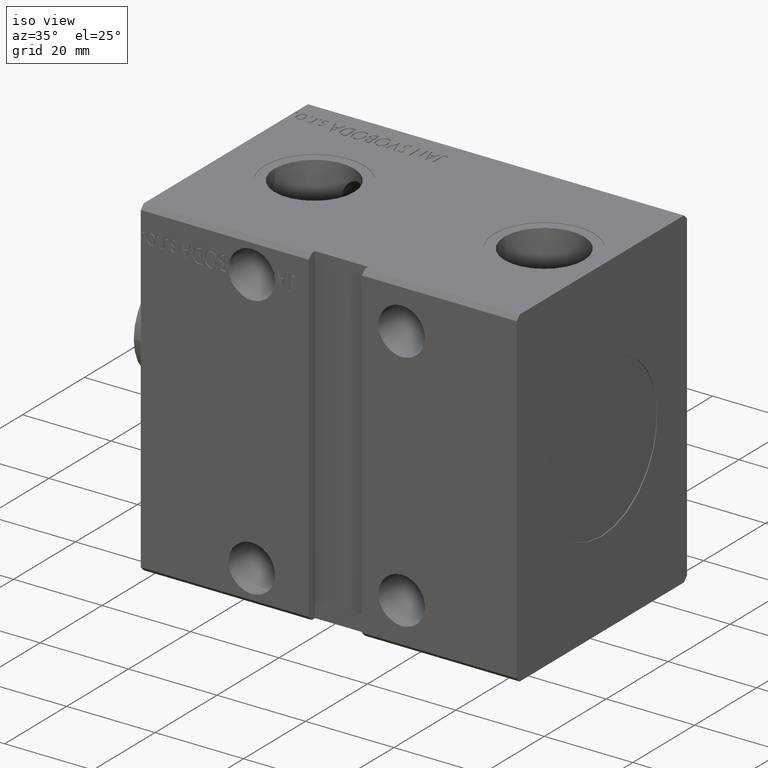
[diagram: clean part render]
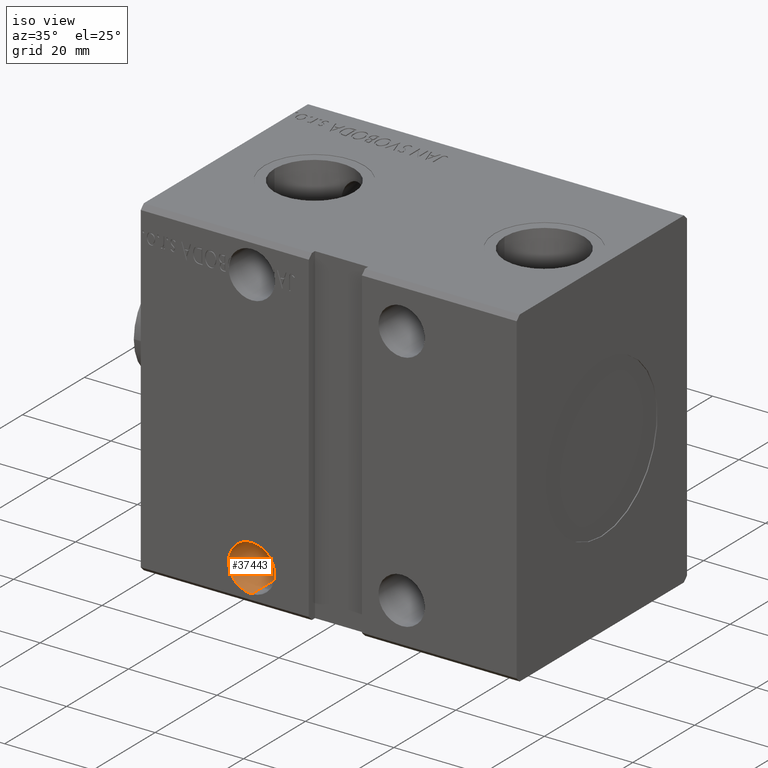
[diagram: same view with one face highlighted and labeled with its STEP entity id]
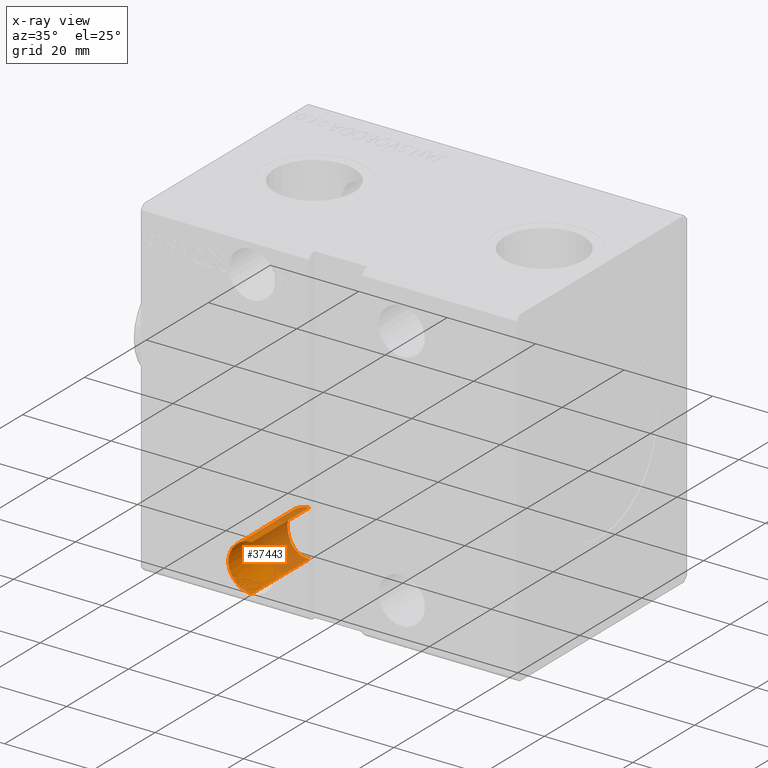
[diagram: x-ray of the same camera — body ghosted, the highlighted face saturated]
A machine part, iso view. The second image highlights one B-rep face of the part: STEP entity #37443.
The next image is the same camera in x-ray: the body ghosted, the highlighted face saturated — about 41% of this face is hidden behind the body in this view.
In plain terms, the highlighted cylindrical surface (edge-blend (fillet) strip) has radius 5.25 mm, axis along (-0, -1, -0).
Its self-contained STEP definition (entity closure, byte-faithful):
#437 = LINE ( 'NONE', #9055, #20990 ) ;
#1131 = VERTEX_POINT ( 'NONE', #37948 ) ;
#1717 = CARTESIAN_POINT ( 'NONE',  ( 21.13581351182155288, -8.808286796013796049, -26.53170078741924343 ) ) ;
#1936 = CARTESIAN_POINT ( 'NONE',  ( 20.01158755616825857, -8.489675680713254735, -31.36801936094759569 ) ) ;
#2175 = ORIENTED_EDGE ( 'NONE', *, *, #22770, .T. ) ;
#2333 = CARTESIAN_POINT ( 'NONE',  ( 19.91032013521866517, -8.453117132441940740, -29.13839739757945324 ) ) ;
#2540 = CARTESIAN_POINT ( 'NONE',  ( 22.31964126081586741, -8.975395274133536105, -25.53840020970784863 ) ) ;
#2643 = VERTEX_POINT ( 'NONE', #12872 ) ;
#4734 = VERTEX_POINT ( 'NONE', #31499 ) ;
#5205 = CARTESIAN_POINT ( 'NONE',  ( 24.24614678946787194, -8.914927550530356015, -24.81574746635270401 ) ) ;
#5815 = CARTESIAN_POINT ( 'NONE',  ( 22.46749615007263756, -8.985536476660895389, -25.44979868604956863 ) ) ;
#5866 = EDGE_LOOP ( 'NONE', ( #23806, #2175, #18679, #8338 ) ) ;
#7226 = VERTEX_POINT ( 'NONE', #25282 ) ;
#8261 = CARTESIAN_POINT ( 'NONE',  ( 19.85032660596811738, -8.430888601869972021, -30.34179020683364314 ) ) ;
#8338 = ORIENTED_EDGE ( 'NONE', *, *, #24582, .F. ) ;
#8386 = AXIS2_PLACEMENT_3D ( 'NONE', #34622, #19289, #28299 ) ;
#8474 = CARTESIAN_POINT ( 'NONE',  ( 19.90982819484606381, -8.452936693195294282, -30.85860526111925495 ) ) ;
#8677 = CARTESIAN_POINT ( 'NONE',  ( 20.11270367705738948, -8.525401507591297445, -28.30134447258186370 ) ) ;
#8883 = CARTESIAN_POINT ( 'NONE',  ( 20.01248818278899932, -8.489995101794782784, -28.62855630639378290 ) ) ;
#9055 = CARTESIAN_POINT ( 'NONE',  ( 25.09203633362806229, 62.50000000000002842, -35.24999999999999289 ) ) ;
#11135 = CARTESIAN_POINT ( 'NONE',  ( 25.09203633362806229, -8.753478393117793743, -24.74999999999998934 ) ) ;
#11744 = CARTESIAN_POINT ( 'NONE',  ( 22.76738609301051497, -8.998283481120575189, -34.71044669971033869 ) ) ;
#11946 = CARTESIAN_POINT ( 'NONE',  ( 20.37479934545333649, -8.609719649645143136, -27.67043791604183411 ) ) ;
#12872 = CARTESIAN_POINT ( 'NONE',  ( 25.09203633362806585, -8.753478393117795520, -35.25000000000000000 ) ) ;
#14055 = DIRECTION ( 'NONE',  ( -0.000000000000000000, -1.000000000000000000, -5.507058653894626469E-17 ) ) ;
#14204 = CARTESIAN_POINT ( 'NONE',  ( 24.92548303146842770, -8.793283776070204283, -24.75000000000000000 ) ) ;
#14414 = CARTESIAN_POINT ( 'NONE',  ( 21.88878565576105473, -8.935709917871195174, -34.17360088282929809 ) ) ;
#14812 = CARTESIAN_POINT ( 'NONE',  ( 22.46293648994419812, -8.985253342143384003, -34.54754228830879725 ) ) ;
#14877 = AXIS2_PLACEMENT_3D ( 'NONE', #20760, #38571, #36092 ) ;
#15000 = VECTOR ( 'NONE', #14055, 1000.000000000000000 ) ;
#15026 = CARTESIAN_POINT ( 'NONE',  ( 21.62935564280670064, -8.896033270444579699, -26.05006266297171535 ) ) ;
#17122 = LINE ( 'NONE', #26723, #15000 ) ;
#17677 = CARTESIAN_POINT ( 'NONE',  ( 20.11164270990531122, -8.525048521224713127, -31.69579571519651040 ) ) ;
#17885 = CARTESIAN_POINT ( 'NONE',  ( 22.92576634363160792, -9.001124273122334429, -34.78538622542409797 ) ) ;
#18679 = ORIENTED_EDGE ( 'NONE', *, *, #20040, .T. ) ;
#19289 = DIRECTION ( 'NONE',  ( 0.000000000000000000, -1.000000000000000000, -5.507058653894625853E-17 ) ) ;
#20040 = EDGE_CURVE ( 'NONE', #7226, #1131, #26004, .T. ) ;
#20518 = CARTESIAN_POINT ( 'NONE',  ( 22.03373301574867682, -8.949130486034311716, -25.72930591772997744 ) ) ;
#20726 = CARTESIAN_POINT ( 'NONE',  ( 20.91827991304104373, -8.758132434806764621, -33.20291473209898214 ) ) ;
#20760 = CARTESIAN_POINT ( 'NONE',  ( 25.09203633362806229, 62.50000000000002842, -29.99999999999998934 ) ) ;
#20765 = B_SPLINE_CURVE_WITH_KNOTS ( 'NONE', 3,
 ( #11135, #14204, #33409, #27280, #5205, #30348, #30548, #21340, #36882, #5815, #2540, #20518, #33202, #15026, #27488, #1717, #39950, #23793, #11946, #8677, #8883, #2333, #26877, #36680, #36475, #8261, #36260, #8474, #1936, #17677, #20939, #26666, #20726, #30140, #33807, #14414, #27075, #14812, #11744, #17885, #29727, #39139, #23592, #36060, #39537 ),
 .UNSPECIFIED., .F., .F.,
 ( 4, 2, 2, 2, 2, 2, 2, 2, 2, 2, 2, 2, 1, 2, 2, 2, 2, 2, 2, 2, 2, 2, 4 ),
 ( 0.01799971395238500818, 0.01851494330391418794, 0.01903017265544336423, 0.02006063135850172374, 0.02057586071003090003, 0.02109109006156007632, 0.02160631941308925261, 0.02212154876461842890, 0.02315200746767678147, 0.02418246617073513405, 0.02521292487379349009, 0.02572815422532266985, 0.02624338357685185308, 0.02675861292838103284, 0.02727384227991021259, 0.02830430098296858599, 0.02933475968602695938, 0.03036521838908532583, 0.03139567709214369923, 0.03191090644367288592, 0.03242613579520206568, 0.03345659449826043214, 0.03448705320131879165 ),
 .UNSPECIFIED. ) ;
#20939 = CARTESIAN_POINT ( 'NONE',  ( 20.37448565583469318, -8.609630337770669328, -32.32911128058502470 ) ) ;
#20990 = VECTOR ( 'NONE', #34167, 1000.000000000000000 ) ;
#21340 = CARTESIAN_POINT ( 'NONE',  ( 22.93192267474806911, -9.001164395113265826, -25.21185353327031820 ) ) ;
#22770 = EDGE_CURVE ( 'NONE', #4734, #7226, #17122, .T. ) ;
#23592 = CARTESIAN_POINT ( 'NONE',  ( 24.40719667732488674, -8.895736433264504583, -35.21638090298387169 ) ) ;
#23623 = FACE_OUTER_BOUND ( 'NONE', #5866, .T. ) ;
#23793 = CARTESIAN_POINT ( 'NONE',  ( 20.53896281337766894, -8.659212950505500217, -27.36389546741519752 ) ) ;
#23806 = ORIENTED_EDGE ( 'NONE', *, *, #25897, .F. ) ;
#24582 = EDGE_CURVE ( 'NONE', #2643, #1131, #437, .T. ) ;
#25282 = CARTESIAN_POINT ( 'NONE',  ( 25.09203633362806229, -27.50000000000000355, -24.74999999999998934 ) ) ;
#25897 = EDGE_CURVE ( 'NONE', #4734, #2643, #20765, .T. ) ;
#26004 = CIRCLE ( 'NONE', #8386, 5.249999999999997335 ) ;
#26666 = CARTESIAN_POINT ( 'NONE',  ( 20.53884023444499718, -8.659164790814179113, -32.63577516527342226 ) ) ;
#26723 = CARTESIAN_POINT ( 'NONE',  ( 25.09203633362806229, 62.50000000000002842, -24.74999999999998579 ) ) ;
#26877 = CARTESIAN_POINT ( 'NONE',  ( 19.88457419945592619, -8.443604141642794048, -29.31107715102094247 ) ) ;
#26909 = CYLINDRICAL_SURFACE ( 'NONE', #14877, 5.250000000000000888 ) ;
#27075 = CARTESIAN_POINT ( 'NONE',  ( 22.31574544340632116, -8.975089022710402986, -34.45915055828731255 ) ) ;
#27280 = CARTESIAN_POINT ( 'NONE',  ( 24.41796465910936931, -8.889268893190665821, -24.79066262851707236 ) ) ;
#27488 = CARTESIAN_POINT ( 'NONE',  ( 21.50054843924515069, -8.875073064647663657, -26.16681733862788661 ) ) ;
#28299 = DIRECTION ( 'NONE',  ( 0.000000000000000000, 0.000000000000000000, -1.000000000000000000 ) ) ;
#29727 = CARTESIAN_POINT ( 'NONE',  ( 23.40713737881099732, -8.996512347487444217, -34.98439600114279102 ) ) ;
#30140 = CARTESIAN_POINT ( 'NONE',  ( 21.13437635199891318, -8.808003175221950087, -33.46676695001080049 ) ) ;
#30348 = CARTESIAN_POINT ( 'NONE',  ( 23.74056050322555578, -8.975902759582846002, -24.91531447442126534 ) ) ;
#30548 = CARTESIAN_POINT ( 'NONE',  ( 23.41185068282589299, -8.996263611929594006, -25.01409721280269594 ) ) ;
#31499 = CARTESIAN_POINT ( 'NONE',  ( 25.09203633362806229, -8.753478393117793743, -24.74999999999998934 ) ) ;
#33202 = CARTESIAN_POINT ( 'NONE',  ( 21.89568027897454172, -8.933003518219218009, -25.83161056222946073 ) ) ;
#33409 = CARTESIAN_POINT ( 'NONE',  ( 24.75737702535593954, -8.828439908652118362, -24.75790389064604469 ) ) ;
#33807 = CARTESIAN_POINT ( 'NONE',  ( 21.62212855883694118, -8.897355889382421168, -33.95490652864518921 ) ) ;
#34167 = DIRECTION ( 'NONE',  ( -0.000000000000000000, -1.000000000000000000, -5.507058653894626469E-17 ) ) ;
#34622 = CARTESIAN_POINT ( 'NONE',  ( 25.09203633362806229, -27.50000000000000355, -29.99999999999999289 ) ) ;
#36060 = CARTESIAN_POINT ( 'NONE',  ( 24.75235320269629469, -8.834660915072548804, -35.24999999999998579 ) ) ;
#36092 = DIRECTION ( 'NONE',  ( 0.000000000000000000, 0.000000000000000000, -1.000000000000000000 ) ) ;
#36260 = CARTESIAN_POINT ( 'NONE',  ( 19.88413282917837321, -8.443441056820931934, -30.68562562880411448 ) ) ;
#36475 = CARTESIAN_POINT ( 'NONE',  ( 19.83362251415856292, -8.424600219591543038, -29.99805461567138920 ) ) ;
#36680 = CARTESIAN_POINT ( 'NONE',  ( 19.85057494699763936, -8.430981594985491157, -29.65451613186094093 ) ) ;
#36882 = CARTESIAN_POINT ( 'NONE',  ( 22.77333566898121475, -8.998447055166504782, -25.28659672844136708 ) ) ;
#37443 = ADVANCED_FACE ( 'NONE', ( #23623 ), #26909, .F. ) ;
#37948 = CARTESIAN_POINT ( 'NONE',  ( 25.09203633362806229, -27.50000000000000355, -35.24999999999999289 ) ) ;
#38571 = DIRECTION ( 'NONE',  ( -0.000000000000000000, -1.000000000000000000, -5.507058653894626469E-17 ) ) ;
#39139 = CARTESIAN_POINT ( 'NONE',  ( 23.73575427346593258, -8.976246143453305848, -35.08331919646433050 ) ) ;
#39537 = CARTESIAN_POINT ( 'NONE',  ( 25.09203633362806585, -8.753478393117795520, -35.25000000000000000 ) ) ;
#39950 = CARTESIAN_POINT ( 'NONE',  ( 20.91954720797172484, -8.758446730801182412, -26.79533775823425401 ) ) ;